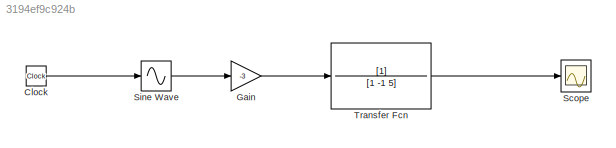
MODEL slx_3194ef9c924b
KIND model
CONFIG AbsTol = auto
CONFIG EnableMultiTasking = off
CONFIG FixedStep = auto
CONFIG MaxStep = auto
CONFIG MinStep = auto
CONFIG RelTol = 1e-3
CONFIG SampleTimeConstraint = Unconstrained
CONFIG Solver = VariableStepAuto
CONFIG SolverName = VariableStepAuto
CONFIG StartTime = 0.0
CONFIG StopTime = 10.0
BLOCK [Clock] Clock
BLOCK [Gain] Gain
  Gain = -3
  OutDataTypeStr = Inherit: Inherit via internal rule
  ParamDataTypeStr = Inherit: Inherit via internal rule
  SaturateOnIntegerOverflow = off
BLOCK [Scope] Scope
  Floating = off
  NumInputPorts = 1
  Ports = [1]
  ScopeSpecificationString = Simulink.scopes.TimeScopeBlockCfg('CurrentConfiguration', extmgr.ConfigurationSet(extmgr.Configuration('Core','General UI',true),extmgr.Configuration('Core','Source UI',true),extmgr.Configuration('Sources','WiredSimulink',true),extmgr.Configuration('Visuals','Time Domain',true,'SerializedDisplays',{struct('MinYLimReal','-23.12201','MaxYLimReal','38.69356','YLabelReal','','MinYLimMag','0.00000','Ma...<+1338ch>
BLOCK [Sin] Sine Wave
  Ports = [1, 1]
  SampleTime = 0
  TimeSource = Use external signal
BLOCK [TransferFcn] Transfer Fcn
  Denominator = [1 -1 5]
LINE Clock:1 -> Sine Wave:1
LINE Gain:1 -> Transfer Fcn:1
LINE Sine Wave:1 -> Gain:1
LINE Transfer Fcn:1 -> Scope:1
